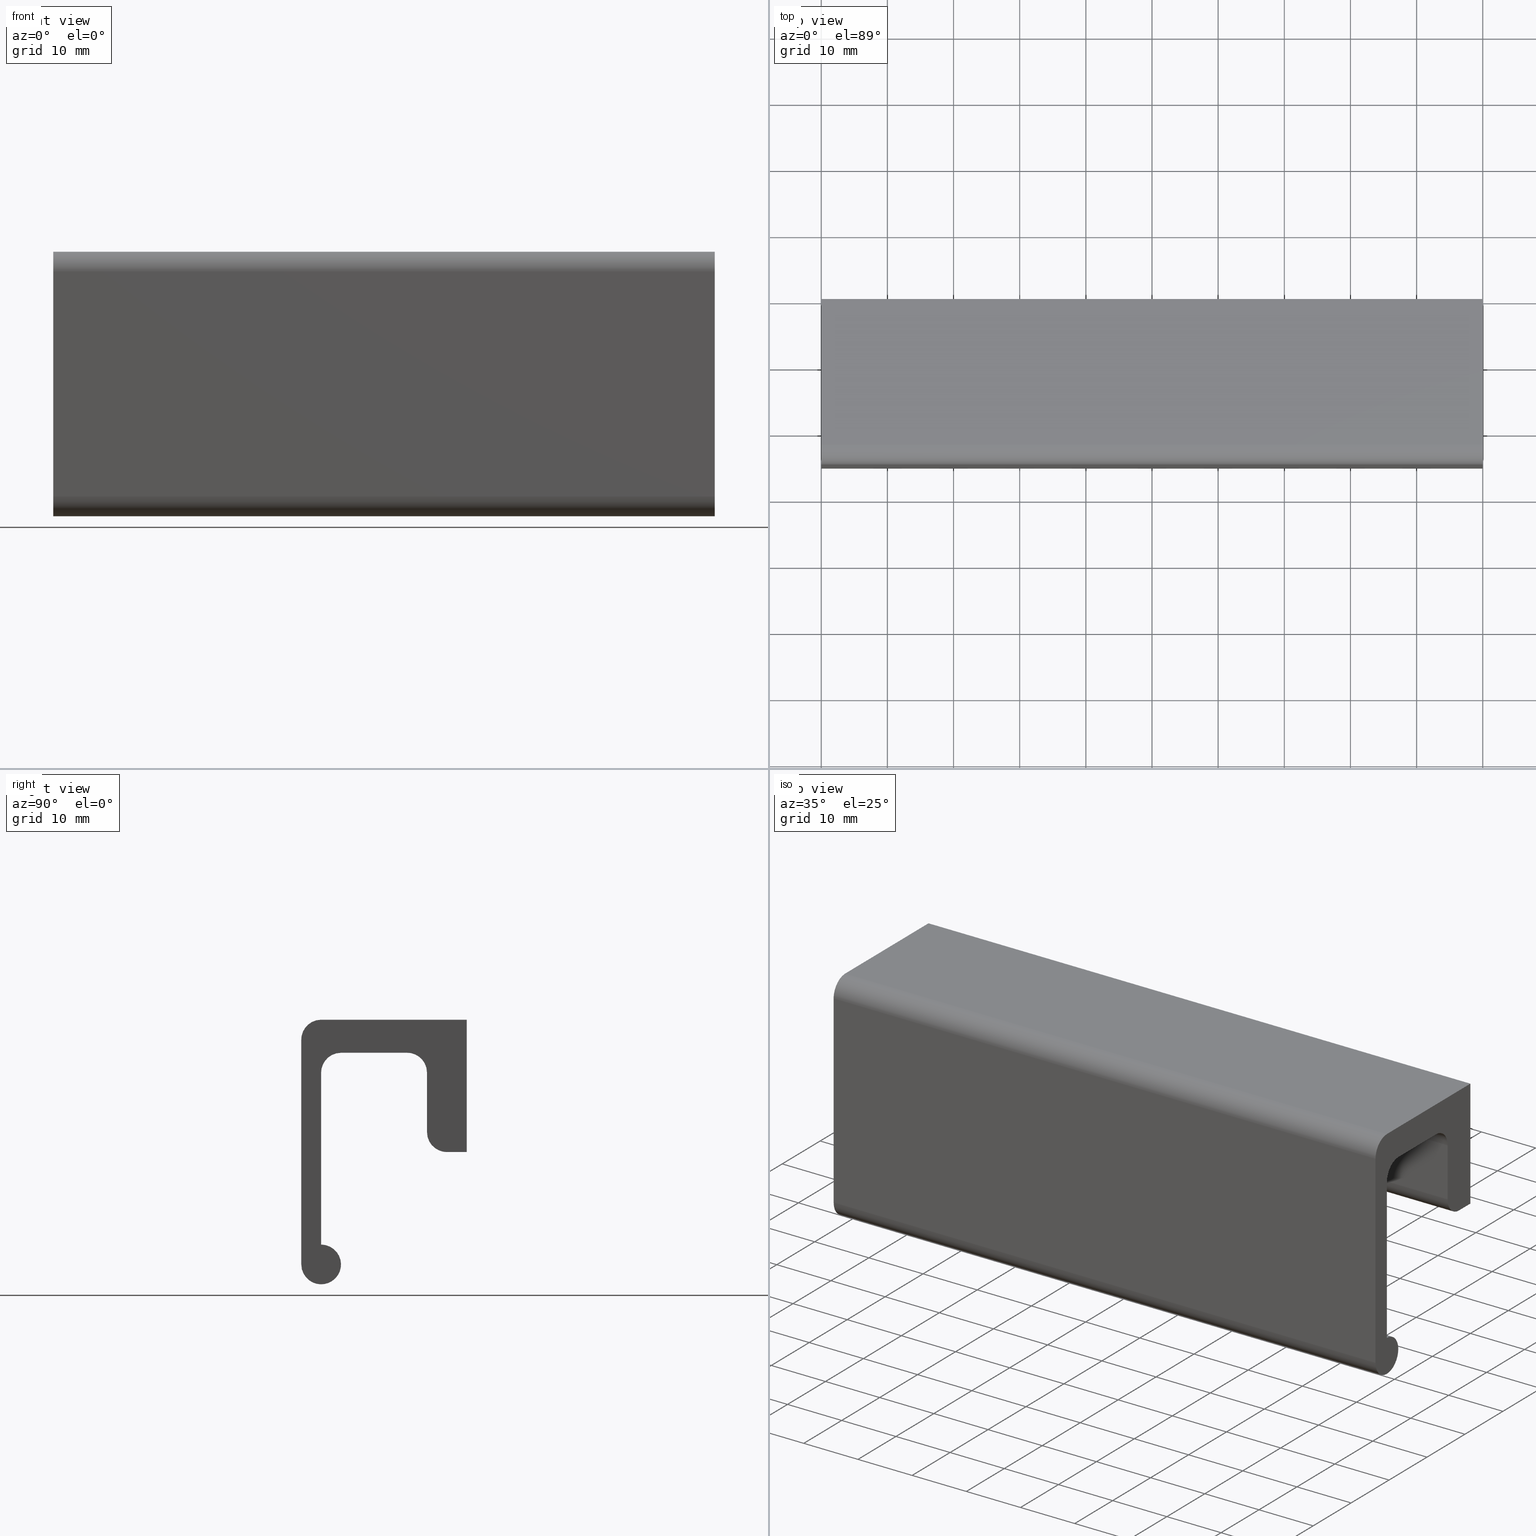
[diagram: canonical four-view strip — front | top / right | iso, engineering-drawing reading convention]
A machine part, canonical four-view strip (front | top / right | iso — engineering-drawing reading convention). The complete STEP part file that produces these views, byte-faithful:
ISO-10303-21;
HEADER;
/****************************************************************
 * Generated by software with PDE/Lib inside                    *
 * PDElib Version 4.4.1-0003, patched  Thursday August 19 11:58 *
 * International Technegroup Inc. (www.iti-oh.com)              *
 ****************************************************************/
FILE_DESCRIPTION((''),'2;1');
FILE_NAME('','2005-10-12T14:13:18',(''),(''),'','CADfix','');
FILE_SCHEMA(('AUTOMOTIVE_DESIGN'));
ENDSEC;
DATA;
#5=APPLICATION_CONTEXT('automotive design');
#6=APPLICATION_PROTOCOL_DEFINITION('Draft International Standard','automotive_design',1998,#5);
#7=PRODUCT_CONTEXT('None',#5,'mechanical');
#8=PRODUCT('pull','','None',(#7));
#9=PRODUCT_RELATED_PRODUCT_CATEGORY('part','description',(#8));
#10=PRODUCT_DEFINITION_FORMATION('None','None',#8);
#11=PRODUCT_DEFINITION_CONTEXT('part definition',#5,'design');
#12=PRODUCT_DEFINITION('None','None',#10,#11);
#18=(NAMED_UNIT(*)PLANE_ANGLE_UNIT()SI_UNIT($,.RADIAN.));
#19=DIMENSIONAL_EXPONENTS(0.0,0.0,0.0,0.0,0.0,0.0,0.0);
#20=PLANE_ANGLE_MEASURE_WITH_UNIT(PLANE_ANGLE_MEASURE(0.017453292500000),#18);
#24=(CONVERSION_BASED_UNIT('DEGREE',#20)NAMED_UNIT(#19)PLANE_ANGLE_UNIT());
#28=(NAMED_UNIT(*)SI_UNIT($,.STERADIAN.)SOLID_ANGLE_UNIT());
#32=(LENGTH_UNIT()NAMED_UNIT(*)SI_UNIT(.MILLI.,.METRE.));
#34=UNCERTAINTY_MEASURE_WITH_UNIT(LENGTH_MEASURE(0.001000000000000),#32,'DISTANCE_ACCURACY_VALUE','');
#36=(GEOMETRIC_REPRESENTATION_CONTEXT(3)GLOBAL_UNCERTAINTY_ASSIGNED_CONTEXT((#34))GLOBAL_UNIT_ASSIGNED_CONTEXT((#24,#28,#32))REPRESENTATION_CONTEXT('None','None'));
#37=AXIS2_PLACEMENT_3D('',#38,#39,#40);
#38=CARTESIAN_POINT('',(0.0,0.0,0.0));
#39=DIRECTION('',(0.0,0.0,1.0));
#40=DIRECTION('',(1.0,0.0,0.0));
#41=ADVANCED_BREP_SHAPE_REPRESENTATION('',(#37,#950),#36);
#42=PRODUCT_DEFINITION_SHAPE('','',#12);
#43=SHAPE_DEFINITION_REPRESENTATION(#42,#41);
#44=CARTESIAN_POINT('',(77.009247998800618,-6.150000000000001,-11.764622712816459));
#45=CARTESIAN_POINT('',(77.244625285984156,-6.150000000000002,-8.773870711617080));
#46=CARTESIAN_POINT('',(80.235377287183539,-6.150000000000001,-9.009247998800618));
#47=CARTESIAN_POINT('',(83.226129288382921,-6.150000000000002,-9.244625285984155));
#48=CARTESIAN_POINT('',(82.990752001199382,-6.150000000000001,-12.235377287183541));
#49=CARTESIAN_POINT('',(77.009247998800618,0.153750000000001,-11.764622712816459));
#50=CARTESIAN_POINT('',(77.244625285984156,0.153750000000000,-8.773870711617080));
#51=CARTESIAN_POINT('',(80.235377287183539,0.153750000000001,-9.009247998800618));
#52=CARTESIAN_POINT('',(83.226129288382921,0.153750000000000,-9.244625285984155));
#53=CARTESIAN_POINT('',(82.990752001199382,0.153750000000001,-12.235377287183541));
#61=(BOUNDED_SURFACE()B_SPLINE_SURFACE(2,1,((#44,#49),(#45,#50),(#46,#51),(#47,#52),(#48,#53)),.UNSPECIFIED.,.F.,.F.,.U.)B_SPLINE_SURFACE_WITH_KNOTS((3,2,3),(2,2),(0.0,4.970562748477129,9.941125496954259),(0.0,6.303750000000003),.UNSPECIFIED.)GEOMETRIC_REPRESENTATION_ITEM()RATIONAL_B_SPLINE_SURFACE(((1.0,1.0),(0.707106781186548,0.707106781186548),(1.0,1.0),(0.707106781186548,0.707106781186548),(1.0,1.0)))REPRESENTATION_ITEM('')SURFACE());
#62=CARTESIAN_POINT('',(80.0,-6.0,-9.000000000000002));
#63=VERTEX_POINT('',#62);
#64=CARTESIAN_POINT('',(77.009247998837708,-6.0,-11.764622712345099));
#65=VERTEX_POINT('',#64);
#66=CARTESIAN_POINT('',(80.0,-6.0,-9.000000000000002));
#67=CARTESIAN_POINT('',(77.226828525902263,-6.000000000000001,-9.000000000000004));
#68=CARTESIAN_POINT('',(77.009247998837708,-6.000000000000001,-11.764622712345096));
#76=(BOUNDED_CURVE()B_SPLINE_CURVE(2,(#66,#67,#68),.UNSPECIFIED.,.F.,.U.)B_SPLINE_CURVE_WITH_KNOTS((3,3),(0.0,0.236331300578731),.UNSPECIFIED.)CURVE()GEOMETRIC_REPRESENTATION_ITEM()RATIONAL_B_SPLINE_CURVE((1.0,0.723120658668504,0.969723356059047))REPRESENTATION_ITEM(''));
#77=EDGE_CURVE('',#63,#65,#76,.T.);
#78=ORIENTED_EDGE('',*,*,#77,.T.);
#79=CARTESIAN_POINT('',(77.009247998837708,1.665335E-016,-11.764622712345099));
#80=VERTEX_POINT('',#79);
#81=CARTESIAN_POINT('',(77.009247998837708,-6.0,-11.764622712345099));
#82=CARTESIAN_POINT('',(77.009247998837708,1.665335E-016,-11.764622712345099));
#83=QUASI_UNIFORM_CURVE('',1,(#81,#82),.UNSPECIFIED.,.F.,.U.);
#84=EDGE_CURVE('',#65,#80,#83,.T.);
#85=ORIENTED_EDGE('',*,*,#84,.T.);
#86=CARTESIAN_POINT('',(80.0,0.0,-9.000000000000002));
#87=VERTEX_POINT('',#86);
#88=CARTESIAN_POINT('',(80.0,0.0,-9.000000000000002));
#89=CARTESIAN_POINT('',(77.226828525902263,0.0,-9.000000000000004));
#90=CARTESIAN_POINT('',(77.009247998837708,1.665335E-016,-11.764622712345096));
#98=(BOUNDED_CURVE()B_SPLINE_CURVE(2,(#88,#89,#90),.UNSPECIFIED.,.F.,.U.)B_SPLINE_CURVE_WITH_KNOTS((3,3),(0.0,0.236331300578731),.UNSPECIFIED.)CURVE()GEOMETRIC_REPRESENTATION_ITEM()RATIONAL_B_SPLINE_CURVE((1.0,0.723120658668504,0.969723356059047))REPRESENTATION_ITEM(''));
#99=EDGE_CURVE('',#87,#80,#98,.T.);
#100=ORIENTED_EDGE('',*,*,#99,.F.);
#101=CARTESIAN_POINT('',(82.990752001162292,1.665335E-016,-12.235377287654901));
#102=VERTEX_POINT('',#101);
#103=CARTESIAN_POINT('',(82.990752001162292,1.665335E-016,-12.235377287654906));
#104=CARTESIAN_POINT('',(83.0,0.0,-12.117870321496570));
#105=CARTESIAN_POINT('',(83.0,0.0,-12.0));
#106=CARTESIAN_POINT('',(83.0,0.0,-9.000000000000002));
#107=CARTESIAN_POINT('',(80.0,0.0,-9.000000000000002));
#115=(BOUNDED_CURVE()B_SPLINE_CURVE(2,(#103,#104,#105,#106,#107),.UNSPECIFIED.,.F.,.U.)B_SPLINE_CURVE_WITH_KNOTS((3,2,3),(0.736331300578731,0.750000000000000,1.0),.UNSPECIFIED.)CURVE()GEOMETRIC_REPRESENTATION_ITEM()RATIONAL_B_SPLINE_CURVE((0.969723356059047,0.983986122518044,1.0,0.707106781186548,1.0))REPRESENTATION_ITEM(''));
#116=EDGE_CURVE('',#102,#87,#115,.T.);
#117=ORIENTED_EDGE('',*,*,#116,.F.);
#118=CARTESIAN_POINT('',(82.990752001162292,-6.0,-12.235377287654901));
#119=VERTEX_POINT('',#118);
#120=CARTESIAN_POINT('',(82.990752001162292,-6.0,-12.235377287654901));
#121=CARTESIAN_POINT('',(82.990752001162292,1.665335E-016,-12.235377287654901));
#122=QUASI_UNIFORM_CURVE('',1,(#120,#121),.UNSPECIFIED.,.F.,.U.);
#123=EDGE_CURVE('',#119,#102,#122,.T.);
#124=ORIENTED_EDGE('',*,*,#123,.F.);
#125=CARTESIAN_POINT('',(82.990752001162292,-6.0,-12.235377287654902));
#126=CARTESIAN_POINT('',(83.0,-6.000000000000001,-12.117870321496570));
#127=CARTESIAN_POINT('',(83.0,-6.0,-12.0));
#128=CARTESIAN_POINT('',(83.0,-6.0,-9.000000000000002));
#129=CARTESIAN_POINT('',(80.0,-6.0,-9.000000000000002));
#137=(BOUNDED_CURVE()B_SPLINE_CURVE(2,(#125,#126,#127,#128,#129),.UNSPECIFIED.,.F.,.U.)B_SPLINE_CURVE_WITH_KNOTS((3,2,3),(0.736331300578731,0.750000000000000,1.0),.UNSPECIFIED.)CURVE()GEOMETRIC_REPRESENTATION_ITEM()RATIONAL_B_SPLINE_CURVE((0.969723356059047,0.983986122518044,1.0,0.707106781186548,1.0))REPRESENTATION_ITEM(''));
#138=EDGE_CURVE('',#119,#63,#137,.T.);
#139=ORIENTED_EDGE('',*,*,#138,.T.);
#140=EDGE_LOOP('',(#78,#85,#100,#117,#124,#139));
#141=FACE_OUTER_BOUND('',#140,.T.);
#142=ADVANCED_FACE('',(#141),#61,.F.);
#143=CARTESIAN_POINT('',(82.990752001199382,-6.150000000000001,-12.235377287183541));
#144=CARTESIAN_POINT('',(82.755374714015829,-6.150000000000002,-15.226129288382928));
#145=CARTESIAN_POINT('',(79.764622712816461,-6.150000000000001,-14.990752001199381));
#146=CARTESIAN_POINT('',(76.773870711617079,-6.150000000000002,-14.755374714015845));
#147=CARTESIAN_POINT('',(77.009247998800618,-6.150000000000001,-11.764622712816459));
#148=CARTESIAN_POINT('',(82.990752001199382,0.153750000000001,-12.235377287183541));
#149=CARTESIAN_POINT('',(82.755374714015829,0.153750000000000,-15.226129288382928));
#150=CARTESIAN_POINT('',(79.764622712816461,0.153750000000001,-14.990752001199381));
#151=CARTESIAN_POINT('',(76.773870711617079,0.153750000000000,-14.755374714015845));
#152=CARTESIAN_POINT('',(77.009247998800618,0.153750000000001,-11.764622712816459));
#160=(BOUNDED_SURFACE()B_SPLINE_SURFACE(2,1,((#143,#148),(#144,#149),(#145,#150),(#146,#151),(#147,#152)),.UNSPECIFIED.,.F.,.F.,.U.)B_SPLINE_SURFACE_WITH_KNOTS((3,2,3),(2,2),(0.0,4.970562748477154,9.941125496954308),(0.0,6.303750000000003),.UNSPECIFIED.)GEOMETRIC_REPRESENTATION_ITEM()RATIONAL_B_SPLINE_SURFACE(((1.0,1.0),(0.707106781186548,0.707106781186548),(1.0,1.0),(0.707106781186548,0.707106781186548),(1.0,1.0)))REPRESENTATION_ITEM('')SURFACE());
#161=CARTESIAN_POINT('',(80.0,-6.0,-15.0));
#162=VERTEX_POINT('',#161);
#163=CARTESIAN_POINT('',(77.009247998837708,-6.000000000000001,-11.764622712345096));
#164=CARTESIAN_POINT('',(77.0,-6.000000000000001,-11.882129678503441));
#165=CARTESIAN_POINT('',(77.0,-6.0,-12.0));
#166=CARTESIAN_POINT('',(77.000000000000014,-6.0,-14.999999999999995));
#167=CARTESIAN_POINT('',(80.0,-6.0,-15.0));
#175=(BOUNDED_CURVE()B_SPLINE_CURVE(2,(#163,#164,#165,#166,#167),.UNSPECIFIED.,.F.,.U.)B_SPLINE_CURVE_WITH_KNOTS((3,2,3),(0.236331300578731,0.250000000000000,0.500000000000000),.UNSPECIFIED.)CURVE()GEOMETRIC_REPRESENTATION_ITEM()RATIONAL_B_SPLINE_CURVE((0.969723356059047,0.983986122518044,1.0,0.707106781186548,1.0))REPRESENTATION_ITEM(''));
#176=EDGE_CURVE('',#65,#162,#175,.T.);
#177=ORIENTED_EDGE('',*,*,#176,.T.);
#178=CARTESIAN_POINT('',(80.0,-6.0,-15.0));
#179=CARTESIAN_POINT('',(82.773171474097779,-6.0,-15.000000000000004));
#180=CARTESIAN_POINT('',(82.990752001162292,-6.0,-12.235377287654902));
#188=(BOUNDED_CURVE()B_SPLINE_CURVE(2,(#178,#179,#180),.UNSPECIFIED.,.F.,.U.)B_SPLINE_CURVE_WITH_KNOTS((3,3),(0.500000000000000,0.736331300578732),.UNSPECIFIED.)CURVE()GEOMETRIC_REPRESENTATION_ITEM()RATIONAL_B_SPLINE_CURVE((1.0,0.723120658668503,0.969723356059048))REPRESENTATION_ITEM(''));
#189=EDGE_CURVE('',#162,#119,#188,.T.);
#190=ORIENTED_EDGE('',*,*,#189,.T.);
#191=ORIENTED_EDGE('',*,*,#123,.T.);
#192=CARTESIAN_POINT('',(80.0,0.0,-15.0));
#193=VERTEX_POINT('',#192);
#194=CARTESIAN_POINT('',(80.0,0.0,-15.0));
#195=CARTESIAN_POINT('',(82.773171474097779,0.0,-15.000000000000004));
#196=CARTESIAN_POINT('',(82.990752001162292,1.665335E-016,-12.235377287654902));
#204=(BOUNDED_CURVE()B_SPLINE_CURVE(2,(#194,#195,#196),.UNSPECIFIED.,.F.,.U.)B_SPLINE_CURVE_WITH_KNOTS((3,3),(0.500000000000000,0.736331300578732),.UNSPECIFIED.)CURVE()GEOMETRIC_REPRESENTATION_ITEM()RATIONAL_B_SPLINE_CURVE((1.0,0.723120658668503,0.969723356059048))REPRESENTATION_ITEM(''));
#205=EDGE_CURVE('',#193,#102,#204,.T.);
#206=ORIENTED_EDGE('',*,*,#205,.F.);
#207=CARTESIAN_POINT('',(77.009247998837708,1.665335E-016,-11.764622712345096));
#208=CARTESIAN_POINT('',(77.0,0.0,-11.882129678503441));
#209=CARTESIAN_POINT('',(77.0,0.0,-12.0));
#210=CARTESIAN_POINT('',(77.000000000000014,0.0,-14.999999999999995));
#211=CARTESIAN_POINT('',(80.0,0.0,-15.0));
#219=(BOUNDED_CURVE()B_SPLINE_CURVE(2,(#207,#208,#209,#210,#211),.UNSPECIFIED.,.F.,.U.)B_SPLINE_CURVE_WITH_KNOTS((3,2,3),(0.236331300578731,0.250000000000000,0.500000000000000),.UNSPECIFIED.)CURVE()GEOMETRIC_REPRESENTATION_ITEM()RATIONAL_B_SPLINE_CURVE((0.969723356059047,0.983986122518044,1.0,0.707106781186548,1.0))REPRESENTATION_ITEM(''));
#220=EDGE_CURVE('',#80,#193,#219,.T.);
#221=ORIENTED_EDGE('',*,*,#220,.F.);
#222=ORIENTED_EDGE('',*,*,#84,.F.);
#223=EDGE_LOOP('',(#177,#190,#191,#206,#221,#222));
#224=FACE_OUTER_BOUND('',#223,.T.);
#225=ADVANCED_FACE('',(#224),#160,.F.);
#226=CARTESIAN_POINT('',(17.009247998800621,-6.150000000000001,-11.764622712816459));
#227=CARTESIAN_POINT('',(17.244625285984149,-6.150000000000002,-8.773870711617080));
#228=CARTESIAN_POINT('',(20.235377287183539,-6.150000000000001,-9.009247998800618));
#229=CARTESIAN_POINT('',(23.226129288382928,-6.150000000000002,-9.244625285984155));
#230=CARTESIAN_POINT('',(22.990752001199379,-6.150000000000001,-12.235377287183541));
#231=CARTESIAN_POINT('',(17.009247998800621,0.153750000000001,-11.764622712816459));
#232=CARTESIAN_POINT('',(17.244625285984149,0.153750000000000,-8.773870711617080));
#233=CARTESIAN_POINT('',(20.235377287183539,0.153750000000001,-9.009247998800618));
#234=CARTESIAN_POINT('',(23.226129288382928,0.153750000000000,-9.244625285984155));
#235=CARTESIAN_POINT('',(22.990752001199379,0.153750000000001,-12.235377287183541));
#243=(BOUNDED_SURFACE()B_SPLINE_SURFACE(2,1,((#226,#231),(#227,#232),(#228,#233),(#229,#234),(#230,#235)),.UNSPECIFIED.,.F.,.F.,.U.)B_SPLINE_SURFACE_WITH_KNOTS((3,2,3),(2,2),(0.0,4.970562748477145,9.941125496954291),(0.0,6.303750000000003),.UNSPECIFIED.)GEOMETRIC_REPRESENTATION_ITEM()RATIONAL_B_SPLINE_SURFACE(((1.0,1.0),(0.707106781186548,0.707106781186548),(1.0,1.0),(0.707106781186548,0.707106781186548),(1.0,1.0)))REPRESENTATION_ITEM('')SURFACE());
#244=CARTESIAN_POINT('',(20.0,-6.0,-9.000000000000002));
#245=VERTEX_POINT('',#244);
#246=CARTESIAN_POINT('',(17.009247998837719,-6.000000000000001,-11.764622712345091));
#247=VERTEX_POINT('',#246);
#248=CARTESIAN_POINT('',(20.0,-6.0,-9.000000000000002));
#249=CARTESIAN_POINT('',(17.226828525902242,-6.000000000000001,-9.000000000000002));
#250=CARTESIAN_POINT('',(17.009247998837715,-6.000000000000001,-11.764622712345096));
#258=(BOUNDED_CURVE()B_SPLINE_CURVE(2,(#248,#249,#250),.UNSPECIFIED.,.F.,.U.)B_SPLINE_CURVE_WITH_KNOTS((3,3),(0.0,0.236331300578731),.UNSPECIFIED.)CURVE()GEOMETRIC_REPRESENTATION_ITEM()RATIONAL_B_SPLINE_CURVE((1.0,0.723120658668504,0.969723356059047))REPRESENTATION_ITEM(''));
#259=EDGE_CURVE('',#245,#247,#258,.T.);
#260=ORIENTED_EDGE('',*,*,#259,.T.);
#261=CARTESIAN_POINT('',(17.009247998837719,1.665335E-016,-11.764622712345099));
#262=VERTEX_POINT('',#261);
#263=CARTESIAN_POINT('',(17.009247998837719,-6.000000000000001,-11.764622712345091));
#264=CARTESIAN_POINT('',(17.009247998837719,1.665335E-016,-11.764622712345099));
#265=QUASI_UNIFORM_CURVE('',1,(#263,#264),.UNSPECIFIED.,.F.,.U.);
#266=EDGE_CURVE('',#247,#262,#265,.T.);
#267=ORIENTED_EDGE('',*,*,#266,.T.);
#268=CARTESIAN_POINT('',(20.0,0.0,-9.000000000000002));
#269=VERTEX_POINT('',#268);
#270=CARTESIAN_POINT('',(20.0,0.0,-9.000000000000002));
#271=CARTESIAN_POINT('',(17.226828525902228,0.0,-9.000000000000002));
#272=CARTESIAN_POINT('',(17.009247998837715,1.665335E-016,-11.764622712345096));
#280=(BOUNDED_CURVE()B_SPLINE_CURVE(2,(#270,#271,#272),.UNSPECIFIED.,.F.,.U.)B_SPLINE_CURVE_WITH_KNOTS((3,3),(0.0,0.236331300578731),.UNSPECIFIED.)CURVE()GEOMETRIC_REPRESENTATION_ITEM()RATIONAL_B_SPLINE_CURVE((1.0,0.723120658668504,0.969723356059047))REPRESENTATION_ITEM(''));
#281=EDGE_CURVE('',#269,#262,#280,.T.);
#282=ORIENTED_EDGE('',*,*,#281,.F.);
#283=CARTESIAN_POINT('',(22.990752001162289,1.665335E-016,-12.235377287654901));
#284=VERTEX_POINT('',#283);
#285=CARTESIAN_POINT('',(22.990752001162285,1.665335E-016,-12.235377287654906));
#286=CARTESIAN_POINT('',(23.000000000000007,0.0,-12.117870321496570));
#287=CARTESIAN_POINT('',(23.0,0.0,-12.0));
#288=CARTESIAN_POINT('',(22.999999999999993,0.0,-9.000000000000002));
#289=CARTESIAN_POINT('',(20.0,0.0,-9.000000000000002));
#297=(BOUNDED_CURVE()B_SPLINE_CURVE(2,(#285,#286,#287,#288,#289),.UNSPECIFIED.,.F.,.U.)B_SPLINE_CURVE_WITH_KNOTS((3,2,3),(0.736331300578731,0.750000000000000,1.0),.UNSPECIFIED.)CURVE()GEOMETRIC_REPRESENTATION_ITEM()RATIONAL_B_SPLINE_CURVE((0.969723356059047,0.983986122518044,1.0,0.707106781186548,1.0))REPRESENTATION_ITEM(''));
#298=EDGE_CURVE('',#284,#269,#297,.T.);
#299=ORIENTED_EDGE('',*,*,#298,.F.);
#300=CARTESIAN_POINT('',(22.990752001162289,-6.0,-12.235377287654901));
#301=VERTEX_POINT('',#300);
#302=CARTESIAN_POINT('',(22.990752001162289,-6.0,-12.235377287654901));
#303=CARTESIAN_POINT('',(22.990752001162289,1.665335E-016,-12.235377287654901));
#304=QUASI_UNIFORM_CURVE('',1,(#302,#303),.UNSPECIFIED.,.F.,.U.);
#305=EDGE_CURVE('',#301,#284,#304,.T.);
#306=ORIENTED_EDGE('',*,*,#305,.F.);
#307=CARTESIAN_POINT('',(22.990752001162285,-6.0,-12.235377287654902));
#308=CARTESIAN_POINT('',(23.000000000000004,-6.000000000000001,-12.117870321496570));
#309=CARTESIAN_POINT('',(23.0,-6.0,-12.0));
#310=CARTESIAN_POINT('',(22.999999999999993,-6.0,-9.000000000000002));
#311=CARTESIAN_POINT('',(20.0,-6.0,-9.000000000000002));
#319=(BOUNDED_CURVE()B_SPLINE_CURVE(2,(#307,#308,#309,#310,#311),.UNSPECIFIED.,.F.,.U.)B_SPLINE_CURVE_WITH_KNOTS((3,2,3),(0.736331300578731,0.750000000000000,1.0),.UNSPECIFIED.)CURVE()GEOMETRIC_REPRESENTATION_ITEM()RATIONAL_B_SPLINE_CURVE((0.969723356059047,0.983986122518044,1.0,0.707106781186548,1.0))REPRESENTATION_ITEM(''));
#320=EDGE_CURVE('',#301,#245,#319,.T.);
#321=ORIENTED_EDGE('',*,*,#320,.T.);
#322=EDGE_LOOP('',(#260,#267,#282,#299,#306,#321));
#323=FACE_OUTER_BOUND('',#322,.T.);
#324=ADVANCED_FACE('',(#323),#243,.F.);
#325=CARTESIAN_POINT('',(22.990752001199379,-6.150000000000001,-12.235377287183541));
#326=CARTESIAN_POINT('',(22.755374714015847,-6.150000000000002,-15.226129288382928));
#327=CARTESIAN_POINT('',(19.764622712816472,-6.150000000000001,-14.990752001199381));
#328=CARTESIAN_POINT('',(16.773870711617082,-6.150000000000002,-14.755374714015845));
#329=CARTESIAN_POINT('',(17.009247998800621,-6.150000000000001,-11.764622712816459));
#330=CARTESIAN_POINT('',(22.990752001199379,0.153750000000001,-12.235377287183541));
#331=CARTESIAN_POINT('',(22.755374714015847,0.153750000000000,-15.226129288382928));
#332=CARTESIAN_POINT('',(19.764622712816472,0.153750000000001,-14.990752001199381));
#333=CARTESIAN_POINT('',(16.773870711617082,0.153750000000000,-14.755374714015845));
#334=CARTESIAN_POINT('',(17.009247998800621,0.153750000000001,-11.764622712816459));
#342=(BOUNDED_SURFACE()B_SPLINE_SURFACE(2,1,((#325,#330),(#326,#331),(#327,#332),(#328,#333),(#329,#334)),.UNSPECIFIED.,.F.,.F.,.U.)B_SPLINE_SURFACE_WITH_KNOTS((3,2,3),(2,2),(0.0,4.970562748477141,9.941125496954282),(0.0,6.303750000000003),.UNSPECIFIED.)GEOMETRIC_REPRESENTATION_ITEM()RATIONAL_B_SPLINE_SURFACE(((1.0,1.0),(0.707106781186548,0.707106781186548),(1.0,1.0),(0.707106781186548,0.707106781186548),(1.0,1.0)))REPRESENTATION_ITEM('')SURFACE());
#343=CARTESIAN_POINT('',(20.0,-6.0,-15.0));
#344=VERTEX_POINT('',#343);
#345=CARTESIAN_POINT('',(17.009247998837715,-6.000000000000001,-11.764622712345096));
#346=CARTESIAN_POINT('',(16.999999999999996,-5.999999999999999,-11.882129678503441));
#347=CARTESIAN_POINT('',(17.0,-6.0,-12.0));
#348=CARTESIAN_POINT('',(17.000000000000004,-6.0,-14.999999999999995));
#349=CARTESIAN_POINT('',(20.0,-6.0,-15.0));
#357=(BOUNDED_CURVE()B_SPLINE_CURVE(2,(#345,#346,#347,#348,#349),.UNSPECIFIED.,.F.,.U.)B_SPLINE_CURVE_WITH_KNOTS((3,2,3),(0.236331300578731,0.250000000000000,0.500000000000000),.UNSPECIFIED.)CURVE()GEOMETRIC_REPRESENTATION_ITEM()RATIONAL_B_SPLINE_CURVE((0.969723356059047,0.983986122518044,1.0,0.707106781186548,1.0))REPRESENTATION_ITEM(''));
#358=EDGE_CURVE('',#247,#344,#357,.T.);
#359=ORIENTED_EDGE('',*,*,#358,.T.);
#360=CARTESIAN_POINT('',(20.0,-6.0,-15.0));
#361=CARTESIAN_POINT('',(22.773171474097772,-6.0,-15.000000000000004));
#362=CARTESIAN_POINT('',(22.990752001162289,-6.0,-12.235377287654902));
#370=(BOUNDED_CURVE()B_SPLINE_CURVE(2,(#360,#361,#362),.UNSPECIFIED.,.F.,.U.)B_SPLINE_CURVE_WITH_KNOTS((3,3),(0.500000000000000,0.736331300578732),.UNSPECIFIED.)CURVE()GEOMETRIC_REPRESENTATION_ITEM()RATIONAL_B_SPLINE_CURVE((1.0,0.723120658668503,0.969723356059048))REPRESENTATION_ITEM(''));
#371=EDGE_CURVE('',#344,#301,#370,.T.);
#372=ORIENTED_EDGE('',*,*,#371,.T.);
#373=ORIENTED_EDGE('',*,*,#305,.T.);
#374=CARTESIAN_POINT('',(20.0,0.0,-15.0));
#375=VERTEX_POINT('',#374);
#376=CARTESIAN_POINT('',(20.0,0.0,-15.0));
#377=CARTESIAN_POINT('',(22.773171474097772,0.0,-15.000000000000004));
#378=CARTESIAN_POINT('',(22.990752001162289,1.665335E-016,-12.235377287654902));
#386=(BOUNDED_CURVE()B_SPLINE_CURVE(2,(#376,#377,#378),.UNSPECIFIED.,.F.,.U.)B_SPLINE_CURVE_WITH_KNOTS((3,3),(0.500000000000000,0.736331300578732),.UNSPECIFIED.)CURVE()GEOMETRIC_REPRESENTATION_ITEM()RATIONAL_B_SPLINE_CURVE((1.0,0.723120658668503,0.969723356059048))REPRESENTATION_ITEM(''));
#387=EDGE_CURVE('',#375,#284,#386,.T.);
#388=ORIENTED_EDGE('',*,*,#387,.F.);
#389=CARTESIAN_POINT('',(17.009247998837715,1.665335E-016,-11.764622712345096));
#390=CARTESIAN_POINT('',(16.999999999999996,0.0,-11.882129678503441));
#391=CARTESIAN_POINT('',(17.0,0.0,-12.0));
#392=CARTESIAN_POINT('',(17.000000000000004,0.0,-14.999999999999995));
#393=CARTESIAN_POINT('',(20.0,0.0,-15.0));
#401=(BOUNDED_CURVE()B_SPLINE_CURVE(2,(#389,#390,#391,#392,#393),.UNSPECIFIED.,.F.,.U.)B_SPLINE_CURVE_WITH_KNOTS((3,2,3),(0.236331300578731,0.250000000000000,0.500000000000000),.UNSPECIFIED.)CURVE()GEOMETRIC_REPRESENTATION_ITEM()RATIONAL_B_SPLINE_CURVE((0.969723356059047,0.983986122518044,1.0,0.707106781186548,1.0))REPRESENTATION_ITEM(''));
#402=EDGE_CURVE('',#262,#375,#401,.T.);
#403=ORIENTED_EDGE('',*,*,#402,.F.);
#404=ORIENTED_EDGE('',*,*,#266,.F.);
#405=EDGE_LOOP('',(#359,#372,#373,#388,#403,#404));
#406=FACE_OUTER_BOUND('',#405,.T.);
#407=ADVANCED_FACE('',(#406),#342,.F.);
#408=CARTESIAN_POINT('',(0.0,-26.248749951545150,1.997999890100308));
#409=CARTESIAN_POINT('',(0.0,1.248750622097401,1.997999890100308));
#410=CARTESIAN_POINT('',(0.0,-26.248749951545150,-41.998000314290628));
#411=CARTESIAN_POINT('',(0.0,1.248750622097401,-41.998000314290628));
#412=B_SPLINE_SURFACE_WITH_KNOTS('',1,1,((#408,#410),(#409,#411)),.UNSPECIFIED.,.F.,.F.,.U.,(2,2),(2,2),(0.0,27.497500573642551),(0.0,43.996000204390938),.UNSPECIFIED.);
#413=CARTESIAN_POINT('',(0.0,0.0,0.0));
#414=VERTEX_POINT('',#413);
#415=CARTESIAN_POINT('',(0.0,0.0,-20.0));
#416=VERTEX_POINT('',#415);
#417=CARTESIAN_POINT('',(0.0,0.0,0.0));
#418=CARTESIAN_POINT('',(0.0,0.0,-20.0));
#419=QUASI_UNIFORM_CURVE('',1,(#417,#418),.UNSPECIFIED.,.F.,.U.);
#420=EDGE_CURVE('',#414,#416,#419,.T.);
#421=ORIENTED_EDGE('',*,*,#420,.T.);
#422=CARTESIAN_POINT('',(0.0,-3.0,-20.0));
#423=VERTEX_POINT('',#422);
#424=CARTESIAN_POINT('',(0.0,0.0,-20.0));
#425=CARTESIAN_POINT('',(0.0,-3.0,-20.0));
#426=QUASI_UNIFORM_CURVE('',1,(#424,#425),.UNSPECIFIED.,.F.,.U.);
#427=EDGE_CURVE('',#416,#423,#426,.T.);
#428=ORIENTED_EDGE('',*,*,#427,.T.);
#429=CARTESIAN_POINT('',(0.0,-6.0,-17.0));
#430=VERTEX_POINT('',#429);
#431=CARTESIAN_POINT('',(0.0,-6.0,-17.0));
#432=CARTESIAN_POINT('',(0.0,-6.0,-19.999999999999996));
#433=CARTESIAN_POINT('',(0.0,-3.0,-20.0));
#441=(BOUNDED_CURVE()B_SPLINE_CURVE(2,(#431,#432,#433),.UNSPECIFIED.,.F.,.U.)CURVE()GEOMETRIC_REPRESENTATION_ITEM()QUASI_UNIFORM_CURVE()RATIONAL_B_SPLINE_CURVE((1.0,0.707106781186548,1.0))REPRESENTATION_ITEM(''));
#442=EDGE_CURVE('',#430,#423,#441,.T.);
#443=ORIENTED_EDGE('',*,*,#442,.F.);
#444=CARTESIAN_POINT('',(0.0,-6.0,-8.0));
#445=VERTEX_POINT('',#444);
#446=CARTESIAN_POINT('',(0.0,-6.0,-17.0));
#447=CARTESIAN_POINT('',(0.0,-6.0,-8.0));
#448=QUASI_UNIFORM_CURVE('',1,(#446,#447),.UNSPECIFIED.,.F.,.U.);
#449=EDGE_CURVE('',#430,#445,#448,.T.);
#450=ORIENTED_EDGE('',*,*,#449,.T.);
#451=CARTESIAN_POINT('',(0.0,-9.0,-5.0));
#452=VERTEX_POINT('',#451);
#453=CARTESIAN_POINT('',(0.0,-5.999999999999999,-8.0));
#454=CARTESIAN_POINT('',(0.0,-5.999999999999999,-5.000000000000001));
#455=CARTESIAN_POINT('',(0.0,-9.0,-5.0));
#463=(BOUNDED_CURVE()B_SPLINE_CURVE(2,(#453,#454,#455),.UNSPECIFIED.,.F.,.U.)CURVE()GEOMETRIC_REPRESENTATION_ITEM()QUASI_UNIFORM_CURVE()RATIONAL_B_SPLINE_CURVE((1.0,0.707106781186548,1.0))REPRESENTATION_ITEM(''));
#464=EDGE_CURVE('',#445,#452,#463,.T.);
#465=ORIENTED_EDGE('',*,*,#464,.T.);
#466=CARTESIAN_POINT('',(0.0,-19.0,-5.0));
#467=VERTEX_POINT('',#466);
#468=CARTESIAN_POINT('',(0.0,-9.0,-5.0));
#469=CARTESIAN_POINT('',(0.0,-19.0,-5.0));
#470=QUASI_UNIFORM_CURVE('',1,(#468,#469),.UNSPECIFIED.,.F.,.U.);
#471=EDGE_CURVE('',#452,#467,#470,.T.);
#472=ORIENTED_EDGE('',*,*,#471,.T.);
#473=CARTESIAN_POINT('',(0.0,-22.0,-8.0));
#474=VERTEX_POINT('',#473);
#475=CARTESIAN_POINT('',(0.0,-19.0,-5.0));
#476=CARTESIAN_POINT('',(0.0,-22.000000000000007,-5.000000000000001));
#477=CARTESIAN_POINT('',(0.0,-22.0,-8.0));
#485=(BOUNDED_CURVE()B_SPLINE_CURVE(2,(#475,#476,#477),.UNSPECIFIED.,.F.,.U.)CURVE()GEOMETRIC_REPRESENTATION_ITEM()QUASI_UNIFORM_CURVE()RATIONAL_B_SPLINE_CURVE((1.0,0.707106781186548,1.0))REPRESENTATION_ITEM(''));
#486=EDGE_CURVE('',#467,#474,#485,.T.);
#487=ORIENTED_EDGE('',*,*,#486,.T.);
#488=CARTESIAN_POINT('',(0.0,-22.0,-34.0));
#489=VERTEX_POINT('',#488);
#490=CARTESIAN_POINT('',(0.0,-22.0,-8.0));
#491=CARTESIAN_POINT('',(0.0,-22.0,-34.0));
#492=QUASI_UNIFORM_CURVE('',1,(#490,#491),.UNSPECIFIED.,.F.,.U.);
#493=EDGE_CURVE('',#474,#489,#492,.T.);
#494=ORIENTED_EDGE('',*,*,#493,.T.);
#495=CARTESIAN_POINT('',(0.0,-25.0,-37.0));
#496=VERTEX_POINT('',#495);
#497=CARTESIAN_POINT('',(0.0,-25.0,-37.0));
#498=CARTESIAN_POINT('',(0.0,-25.0,-39.999999999999993));
#499=CARTESIAN_POINT('',(0.0,-22.0,-40.0));
#500=CARTESIAN_POINT('',(0.0,-18.999999999999993,-39.999999999999993));
#501=CARTESIAN_POINT('',(0.0,-19.0,-37.0));
#502=CARTESIAN_POINT('',(0.0,-18.999999999999993,-33.999999999999993));
#503=CARTESIAN_POINT('',(0.0,-22.0,-33.999999999999993));
#511=(BOUNDED_CURVE()B_SPLINE_CURVE(2,(#497,#498,#499,#500,#501,#502,#503),.UNSPECIFIED.,.F.,.U.)B_SPLINE_CURVE_WITH_KNOTS((3,2,2,3),(0.0,0.333333333333333,0.666666666666667,1.0),.UNSPECIFIED.)CURVE()GEOMETRIC_REPRESENTATION_ITEM()RATIONAL_B_SPLINE_CURVE((1.0,0.707106781186548,1.0,0.707106781186548,1.0,0.707106781186548,1.0))REPRESENTATION_ITEM(''));
#512=EDGE_CURVE('',#496,#489,#511,.T.);
#513=ORIENTED_EDGE('',*,*,#512,.F.);
#514=CARTESIAN_POINT('',(0.0,-25.0,-3.0));
#515=VERTEX_POINT('',#514);
#516=CARTESIAN_POINT('',(0.0,-25.0,-37.0));
#517=CARTESIAN_POINT('',(0.0,-25.0,-3.0));
#518=QUASI_UNIFORM_CURVE('',1,(#516,#517),.UNSPECIFIED.,.F.,.U.);
#519=EDGE_CURVE('',#496,#515,#518,.T.);
#520=ORIENTED_EDGE('',*,*,#519,.T.);
#521=CARTESIAN_POINT('',(0.0,-22.0,0.0));
#522=VERTEX_POINT('',#521);
#523=CARTESIAN_POINT('',(0.0,-22.0,0.0));
#524=CARTESIAN_POINT('',(0.0,-25.0,0.0));
#525=CARTESIAN_POINT('',(0.0,-25.0,-3.0));
#533=(BOUNDED_CURVE()B_SPLINE_CURVE(2,(#523,#524,#525),.UNSPECIFIED.,.F.,.U.)CURVE()GEOMETRIC_REPRESENTATION_ITEM()QUASI_UNIFORM_CURVE()RATIONAL_B_SPLINE_CURVE((1.0,0.707106781186548,1.0))REPRESENTATION_ITEM(''));
#534=EDGE_CURVE('',#522,#515,#533,.T.);
#535=ORIENTED_EDGE('',*,*,#534,.F.);
#536=CARTESIAN_POINT('',(0.0,-22.0,0.0));
#537=CARTESIAN_POINT('',(0.0,0.0,0.0));
#538=QUASI_UNIFORM_CURVE('',1,(#536,#537),.UNSPECIFIED.,.F.,.U.);
#539=EDGE_CURVE('',#522,#414,#538,.T.);
#540=ORIENTED_EDGE('',*,*,#539,.T.);
#541=EDGE_LOOP('',(#421,#428,#443,#450,#465,#472,#487,#494,#513,#520,#535,#540));
#542=FACE_OUTER_BOUND('',#541,.T.);
#543=ADVANCED_FACE('',(#542),#412,.T.);
#544=CARTESIAN_POINT('',(100.0,-26.248749951545150,1.997999890100308));
#545=CARTESIAN_POINT('',(100.0,1.248750622097401,1.997999890100308));
#546=CARTESIAN_POINT('',(100.0,-26.248749951545150,-41.998000314290628));
#547=CARTESIAN_POINT('',(100.0,1.248750622097401,-41.998000314290628));
#548=B_SPLINE_SURFACE_WITH_KNOTS('',1,1,((#544,#546),(#545,#547)),.UNSPECIFIED.,.F.,.F.,.U.,(2,2),(2,2),(0.0,27.497500573642551),(0.0,43.996000204390938),.UNSPECIFIED.);
#549=CARTESIAN_POINT('',(100.0,0.0,0.0));
#550=VERTEX_POINT('',#549);
#551=CARTESIAN_POINT('',(100.0,0.0,-20.0));
#552=VERTEX_POINT('',#551);
#553=CARTESIAN_POINT('',(100.0,0.0,0.0));
#554=CARTESIAN_POINT('',(100.0,0.0,-20.0));
#555=QUASI_UNIFORM_CURVE('',1,(#553,#554),.UNSPECIFIED.,.F.,.U.);
#556=EDGE_CURVE('',#550,#552,#555,.T.);
#557=ORIENTED_EDGE('',*,*,#556,.F.);
#558=CARTESIAN_POINT('',(100.0,-22.0,0.0));
#559=VERTEX_POINT('',#558);
#560=CARTESIAN_POINT('',(100.0,-22.0,0.0));
#561=CARTESIAN_POINT('',(100.0,0.0,0.0));
#562=QUASI_UNIFORM_CURVE('',1,(#560,#561),.UNSPECIFIED.,.F.,.U.);
#563=EDGE_CURVE('',#559,#550,#562,.T.);
#564=ORIENTED_EDGE('',*,*,#563,.F.);
#565=CARTESIAN_POINT('',(100.0,-25.0,-3.0));
#566=VERTEX_POINT('',#565);
#567=CARTESIAN_POINT('',(100.0,-22.0,0.0));
#568=CARTESIAN_POINT('',(100.0,-25.0,0.0));
#569=CARTESIAN_POINT('',(100.0,-25.0,-3.0));
#577=(BOUNDED_CURVE()B_SPLINE_CURVE(2,(#567,#568,#569),.UNSPECIFIED.,.F.,.U.)CURVE()GEOMETRIC_REPRESENTATION_ITEM()QUASI_UNIFORM_CURVE()RATIONAL_B_SPLINE_CURVE((1.0,0.707106781186548,1.0))REPRESENTATION_ITEM(''));
#578=EDGE_CURVE('',#559,#566,#577,.T.);
#579=ORIENTED_EDGE('',*,*,#578,.T.);
#580=CARTESIAN_POINT('',(100.0,-25.0,-37.0));
#581=VERTEX_POINT('',#580);
#582=CARTESIAN_POINT('',(100.0,-25.0,-37.0));
#583=CARTESIAN_POINT('',(100.0,-25.0,-3.0));
#584=QUASI_UNIFORM_CURVE('',1,(#582,#583),.UNSPECIFIED.,.F.,.U.);
#585=EDGE_CURVE('',#581,#566,#584,.T.);
#586=ORIENTED_EDGE('',*,*,#585,.F.);
#587=CARTESIAN_POINT('',(100.0,-22.0,-34.0));
#588=VERTEX_POINT('',#587);
#589=CARTESIAN_POINT('',(100.0,-25.0,-37.0));
#590=CARTESIAN_POINT('',(100.0,-25.0,-39.999999999999993));
#591=CARTESIAN_POINT('',(100.0,-22.0,-40.0));
#592=CARTESIAN_POINT('',(100.0,-18.999999999999993,-39.999999999999993));
#593=CARTESIAN_POINT('',(100.0,-19.0,-37.0));
#594=CARTESIAN_POINT('',(100.0,-18.999999999999993,-33.999999999999993));
#595=CARTESIAN_POINT('',(100.0,-22.0,-33.999999999999993));
#603=(BOUNDED_CURVE()B_SPLINE_CURVE(2,(#589,#590,#591,#592,#593,#594,#595),.UNSPECIFIED.,.F.,.U.)B_SPLINE_CURVE_WITH_KNOTS((3,2,2,3),(0.0,0.333333333333333,0.666666666666667,1.0),.UNSPECIFIED.)CURVE()GEOMETRIC_REPRESENTATION_ITEM()RATIONAL_B_SPLINE_CURVE((1.0,0.707106781186548,1.0,0.707106781186548,1.0,0.707106781186548,1.0))REPRESENTATION_ITEM(''));
#604=EDGE_CURVE('',#581,#588,#603,.T.);
#605=ORIENTED_EDGE('',*,*,#604,.T.);
#606=CARTESIAN_POINT('',(100.0,-22.0,-8.0));
#607=VERTEX_POINT('',#606);
#608=CARTESIAN_POINT('',(100.0,-22.0,-8.0));
#609=CARTESIAN_POINT('',(100.0,-22.0,-34.0));
#610=QUASI_UNIFORM_CURVE('',1,(#608,#609),.UNSPECIFIED.,.F.,.U.);
#611=EDGE_CURVE('',#607,#588,#610,.T.);
#612=ORIENTED_EDGE('',*,*,#611,.F.);
#613=CARTESIAN_POINT('',(100.0,-19.0,-5.0));
#614=VERTEX_POINT('',#613);
#615=CARTESIAN_POINT('',(100.0,-19.0,-5.0));
#616=CARTESIAN_POINT('',(100.0,-22.000000000000007,-5.000000000000001));
#617=CARTESIAN_POINT('',(100.0,-22.0,-8.0));
#625=(BOUNDED_CURVE()B_SPLINE_CURVE(2,(#615,#616,#617),.UNSPECIFIED.,.F.,.U.)CURVE()GEOMETRIC_REPRESENTATION_ITEM()QUASI_UNIFORM_CURVE()RATIONAL_B_SPLINE_CURVE((1.0,0.707106781186548,1.0))REPRESENTATION_ITEM(''));
#626=EDGE_CURVE('',#614,#607,#625,.T.);
#627=ORIENTED_EDGE('',*,*,#626,.F.);
#628=CARTESIAN_POINT('',(100.0,-9.0,-5.0));
#629=VERTEX_POINT('',#628);
#630=CARTESIAN_POINT('',(100.0,-9.0,-5.0));
#631=CARTESIAN_POINT('',(100.0,-19.0,-5.0));
#632=QUASI_UNIFORM_CURVE('',1,(#630,#631),.UNSPECIFIED.,.F.,.U.);
#633=EDGE_CURVE('',#629,#614,#632,.T.);
#634=ORIENTED_EDGE('',*,*,#633,.F.);
#635=CARTESIAN_POINT('',(100.0,-6.0,-8.0));
#636=VERTEX_POINT('',#635);
#637=CARTESIAN_POINT('',(100.0,-5.999999999999999,-8.0));
#638=CARTESIAN_POINT('',(100.0,-5.999999999999999,-5.000000000000001));
#639=CARTESIAN_POINT('',(100.0,-9.0,-5.0));
#647=(BOUNDED_CURVE()B_SPLINE_CURVE(2,(#637,#638,#639),.UNSPECIFIED.,.F.,.U.)CURVE()GEOMETRIC_REPRESENTATION_ITEM()QUASI_UNIFORM_CURVE()RATIONAL_B_SPLINE_CURVE((1.0,0.707106781186548,1.0))REPRESENTATION_ITEM(''));
#648=EDGE_CURVE('',#636,#629,#647,.T.);
#649=ORIENTED_EDGE('',*,*,#648,.F.);
#650=CARTESIAN_POINT('',(100.0,-6.0,-17.0));
#651=VERTEX_POINT('',#650);
#652=CARTESIAN_POINT('',(100.0,-6.0,-17.0));
#653=CARTESIAN_POINT('',(100.0,-6.0,-8.0));
#654=QUASI_UNIFORM_CURVE('',1,(#652,#653),.UNSPECIFIED.,.F.,.U.);
#655=EDGE_CURVE('',#651,#636,#654,.T.);
#656=ORIENTED_EDGE('',*,*,#655,.F.);
#657=CARTESIAN_POINT('',(100.0,-3.0,-20.0));
#658=VERTEX_POINT('',#657);
#659=CARTESIAN_POINT('',(100.0,-6.0,-17.0));
#660=CARTESIAN_POINT('',(100.0,-6.0,-19.999999999999996));
#661=CARTESIAN_POINT('',(100.0,-3.0,-20.0));
#669=(BOUNDED_CURVE()B_SPLINE_CURVE(2,(#659,#660,#661),.UNSPECIFIED.,.F.,.U.)CURVE()GEOMETRIC_REPRESENTATION_ITEM()QUASI_UNIFORM_CURVE()RATIONAL_B_SPLINE_CURVE((1.0,0.707106781186548,1.0))REPRESENTATION_ITEM(''));
#670=EDGE_CURVE('',#651,#658,#669,.T.);
#671=ORIENTED_EDGE('',*,*,#670,.T.);
#672=CARTESIAN_POINT('',(100.0,0.0,-20.0));
#673=CARTESIAN_POINT('',(100.0,-3.0,-20.0));
#674=QUASI_UNIFORM_CURVE('',1,(#672,#673),.UNSPECIFIED.,.F.,.U.);
#675=EDGE_CURVE('',#552,#658,#674,.T.);
#676=ORIENTED_EDGE('',*,*,#675,.F.);
#677=EDGE_LOOP('',(#557,#564,#579,#586,#605,#612,#627,#634,#649,#656,#671,#676));
#678=FACE_OUTER_BOUND('',#677,.T.);
#679=ADVANCED_FACE('',(#678),#548,.F.);
#680=CARTESIAN_POINT('',(-4.994999806180597,-23.098899957359730,0.0));
#681=CARTESIAN_POINT('',(104.995002488389600,-23.098899957359730,0.0));
#682=CARTESIAN_POINT('',(-4.994999806180597,1.098900547445714,0.0));
#683=CARTESIAN_POINT('',(104.995002488389600,1.098900547445714,0.0));
#684=B_SPLINE_SURFACE_WITH_KNOTS('',1,1,((#680,#682),(#681,#683)),.UNSPECIFIED.,.F.,.F.,.U.,(2,2),(2,2),(0.0,109.990002294570200),(0.0,24.197800504805439),.UNSPECIFIED.);
#685=ORIENTED_EDGE('',*,*,#539,.F.);
#686=CARTESIAN_POINT('',(100.0,-22.0,0.0));
#687=CARTESIAN_POINT('',(0.0,-22.0,0.0));
#688=QUASI_UNIFORM_CURVE('',1,(#686,#687),.UNSPECIFIED.,.F.,.U.);
#689=EDGE_CURVE('',#559,#522,#688,.T.);
#690=ORIENTED_EDGE('',*,*,#689,.F.);
#691=ORIENTED_EDGE('',*,*,#563,.T.);
#692=CARTESIAN_POINT('',(100.0,0.0,0.0));
#693=CARTESIAN_POINT('',(0.0,0.0,0.0));
#694=QUASI_UNIFORM_CURVE('',1,(#692,#693),.UNSPECIFIED.,.F.,.U.);
#695=EDGE_CURVE('',#550,#414,#694,.T.);
#696=ORIENTED_EDGE('',*,*,#695,.T.);
#697=EDGE_LOOP('',(#685,#690,#691,#696));
#698=FACE_OUTER_BOUND('',#697,.T.);
#699=ADVANCED_FACE('',(#698),#684,.T.);
#700=CARTESIAN_POINT('',(102.500000000000000,-21.921469155076380,-0.001028025073329));
#701=CARTESIAN_POINT('',(-2.562500000000000,-21.921469155076380,-0.001028025073329));
#702=CARTESIAN_POINT('',(102.499999999999990,-25.224954401664167,0.085476780498783));
#703=CARTESIAN_POINT('',(-2.562500000000000,-25.224954401664167,0.085476780498783));
#704=CARTESIAN_POINT('',(102.500000000000040,-24.992573438142436,-3.210960226877957));
#705=CARTESIAN_POINT('',(-2.562500000000000,-24.992573438142436,-3.210960226877957));
#713=(BOUNDED_SURFACE()B_SPLINE_SURFACE(1,2,((#700,#702,#704),(#701,#703,#705)),.UNSPECIFIED.,.F.,.F.,.U.)B_SPLINE_SURFACE_WITH_KNOTS((2,2),(3,3),(0.0,105.062500000000000),(0.0,5.313427032265103),.UNSPECIFIED.)GEOMETRIC_REPRESENTATION_ITEM()RATIONAL_B_SPLINE_SURFACE(((1.0,0.670944223154768,0.996392648609106),(1.0,0.670944223154768,0.996392648609106)))REPRESENTATION_ITEM('')SURFACE());
#714=ORIENTED_EDGE('',*,*,#534,.T.);
#715=CARTESIAN_POINT('',(100.0,-25.0,-3.0));
#716=CARTESIAN_POINT('',(0.0,-25.0,-3.0));
#717=QUASI_UNIFORM_CURVE('',1,(#715,#716),.UNSPECIFIED.,.F.,.U.);
#718=EDGE_CURVE('',#566,#515,#717,.T.);
#719=ORIENTED_EDGE('',*,*,#718,.F.);
#720=ORIENTED_EDGE('',*,*,#578,.F.);
#721=ORIENTED_EDGE('',*,*,#689,.T.);
#722=EDGE_LOOP('',(#714,#719,#720,#721));
#723=FACE_OUTER_BOUND('',#722,.T.);
#724=ADVANCED_FACE('',(#723),#713,.T.);
#725=CARTESIAN_POINT('',(-4.994999806180597,-25.0,-1.301700065898595));
#726=CARTESIAN_POINT('',(-4.994999806180597,-25.0,-38.698300846052483));
#727=CARTESIAN_POINT('',(104.995002488389600,-25.0,-1.301700065898595));
#728=CARTESIAN_POINT('',(104.995002488389600,-25.0,-38.698300846052483));
#729=B_SPLINE_SURFACE_WITH_KNOTS('',1,1,((#725,#727),(#726,#728)),.UNSPECIFIED.,.F.,.F.,.U.,(2,2),(2,2),(0.0,37.396600780153882),(0.0,109.990002294570200),.UNSPECIFIED.);
#730=ORIENTED_EDGE('',*,*,#519,.F.);
#731=CARTESIAN_POINT('',(100.0,-25.0,-37.0));
#732=CARTESIAN_POINT('',(0.0,-25.0,-37.0));
#733=QUASI_UNIFORM_CURVE('',1,(#731,#732),.UNSPECIFIED.,.F.,.U.);
#734=EDGE_CURVE('',#581,#496,#733,.T.);
#735=ORIENTED_EDGE('',*,*,#734,.F.);
#736=ORIENTED_EDGE('',*,*,#585,.T.);
#737=ORIENTED_EDGE('',*,*,#718,.T.);
#738=EDGE_LOOP('',(#730,#735,#736,#737));
#739=FACE_OUTER_BOUND('',#738,.T.);
#740=ADVANCED_FACE('',(#739),#729,.T.);
#741=CARTESIAN_POINT('',(102.500000000000000,-24.998971974926668,-36.921469155076380));
#742=CARTESIAN_POINT('',(-2.562500000000000,-24.998971974926668,-36.921469155076380));
#743=CARTESIAN_POINT('',(102.500000000000010,-25.080293045412670,-40.026995545321313));
#744=CARTESIAN_POINT('',(-2.562500000000000,-25.080293045412670,-40.026995545321313));
#745=CARTESIAN_POINT('',(102.500000000000000,-21.973820393504891,-39.999885769192517));
#746=CARTESIAN_POINT('',(-2.562500000000000,-21.973820393504891,-39.999885769192517));
#747=CARTESIAN_POINT('',(102.500000000000010,-18.867347741597108,-39.972775993063713));
#748=CARTESIAN_POINT('',(-2.562500000000000,-18.867347741597108,-39.972775993063713));
#749=CARTESIAN_POINT('',(102.500000000000000,-19.002855335254431,-36.869141837904003));
#750=CARTESIAN_POINT('',(-2.562500000000000,-19.002855335254431,-36.869141837904003));
#751=CARTESIAN_POINT('',(102.500000000000010,-19.138362928911764,-33.765507682744300));
#752=CARTESIAN_POINT('',(-2.562500000000000,-19.138362928911764,-33.765507682744300));
#753=CARTESIAN_POINT('',(102.500000000000000,-22.235377287183528,-34.009247998800632));
#754=CARTESIAN_POINT('',(-2.562500000000000,-22.235377287183528,-34.009247998800632));
#762=(BOUNDED_SURFACE()B_SPLINE_SURFACE(1,2,((#741,#743,#745,#747,#749,#751,#753),(#742,#744,#746,#748,#750,#752,#754)),.UNSPECIFIED.,.F.,.F.,.U.)B_SPLINE_SURFACE_WITH_KNOTS((2,2),(3,2,2,3),(0.0,105.062500000000000),(0.0,5.093697794515248,10.187395589030499,15.281093383545750),.UNSPECIFIED.)GEOMETRIC_REPRESENTATION_ITEM()RATIONAL_B_SPLINE_SURFACE(((1.0,0.694658370458997,1.0,0.694658370458997,1.0,0.694658370458997,1.0),(1.0,0.694658370458997,1.0,0.694658370458997,1.0,0.694658370458997,1.0)))REPRESENTATION_ITEM('')SURFACE());
#763=ORIENTED_EDGE('',*,*,#512,.T.);
#764=CARTESIAN_POINT('',(100.0,-22.0,-34.0));
#765=CARTESIAN_POINT('',(0.0,-22.0,-34.0));
#766=QUASI_UNIFORM_CURVE('',1,(#764,#765),.UNSPECIFIED.,.F.,.U.);
#767=EDGE_CURVE('',#588,#489,#766,.T.);
#768=ORIENTED_EDGE('',*,*,#767,.F.);
#769=ORIENTED_EDGE('',*,*,#604,.F.);
#770=ORIENTED_EDGE('',*,*,#734,.T.);
#771=EDGE_LOOP('',(#763,#768,#769,#770));
#772=FACE_OUTER_BOUND('',#771,.T.);
#773=ADVANCED_FACE('',(#772),#762,.T.);
#774=CARTESIAN_POINT('',(-4.994999806180597,-22.0,-35.298699949606963));
#775=CARTESIAN_POINT('',(-4.994999806180597,-22.0,-6.701299353018701));
#776=CARTESIAN_POINT('',(104.995002488389600,-22.0,-35.298699949606963));
#777=CARTESIAN_POINT('',(104.995002488389600,-22.0,-6.701299353018701));
#778=B_SPLINE_SURFACE_WITH_KNOTS('',1,1,((#774,#776),(#775,#777)),.UNSPECIFIED.,.F.,.F.,.U.,(2,2),(2,2),(0.0,28.597400596588258),(0.0,109.990002294570200),.UNSPECIFIED.);
#779=ORIENTED_EDGE('',*,*,#493,.F.);
#780=CARTESIAN_POINT('',(100.0,-22.0,-8.0));
#781=CARTESIAN_POINT('',(0.0,-22.0,-8.0));
#782=QUASI_UNIFORM_CURVE('',1,(#780,#781),.UNSPECIFIED.,.F.,.U.);
#783=EDGE_CURVE('',#607,#474,#782,.T.);
#784=ORIENTED_EDGE('',*,*,#783,.F.);
#785=ORIENTED_EDGE('',*,*,#611,.T.);
#786=ORIENTED_EDGE('',*,*,#767,.T.);
#787=EDGE_LOOP('',(#779,#784,#785,#786));
#788=FACE_OUTER_BOUND('',#787,.T.);
#789=ADVANCED_FACE('',(#788),#778,.T.);
#790=CARTESIAN_POINT('',(102.500000000000000,-18.973820393504880,-5.000114230807487));
#791=CARTESIAN_POINT('',(-2.562500000000000,-18.973820393504880,-5.000114230807487));
#792=CARTESIAN_POINT('',(102.500000000000030,-22.190804026035256,-4.972040039961358));
#793=CARTESIAN_POINT('',(-2.562500000000000,-22.190804026035256,-4.972040039961358));
#794=CARTESIAN_POINT('',(102.500000000000000,-21.994404395265601,-8.183145618604566));
#795=CARTESIAN_POINT('',(-2.562500000000000,-21.994404395265601,-8.183145618604566));
#803=(BOUNDED_SURFACE()B_SPLINE_SURFACE(1,2,((#790,#792,#794),(#791,#793,#795)),.UNSPECIFIED.,.F.,.F.,.U.)B_SPLINE_SURFACE_WITH_KNOTS((2,2),(3,3),(0.0,105.062500000000000),(0.0,5.217748499531194),.UNSPECIFIED.)GEOMETRIC_REPRESENTATION_ITEM()RATIONAL_B_SPLINE_SURFACE(((1.0,0.681998360062499,1.0),(1.0,0.681998360062499,1.0)))REPRESENTATION_ITEM('')SURFACE());
#804=ORIENTED_EDGE('',*,*,#486,.F.);
#805=CARTESIAN_POINT('',(100.0,-19.0,-5.0));
#806=CARTESIAN_POINT('',(0.0,-19.0,-5.0));
#807=QUASI_UNIFORM_CURVE('',1,(#805,#806),.UNSPECIFIED.,.F.,.U.);
#808=EDGE_CURVE('',#614,#467,#807,.T.);
#809=ORIENTED_EDGE('',*,*,#808,.F.);
#810=ORIENTED_EDGE('',*,*,#626,.T.);
#811=ORIENTED_EDGE('',*,*,#783,.T.);
#812=EDGE_LOOP('',(#804,#809,#810,#811));
#813=FACE_OUTER_BOUND('',#812,.T.);
#814=ADVANCED_FACE('',(#813),#803,.F.);
#815=CARTESIAN_POINT('',(104.994999806180600,-19.499499980618062,-5.0));
#816=CARTESIAN_POINT('',(-4.995002488389611,-19.499499980618062,-5.0));
#817=CARTESIAN_POINT('',(104.994999806180600,-8.500499751161037,-5.0));
#818=CARTESIAN_POINT('',(-4.995002488389611,-8.500499751161037,-5.0));
#819=B_SPLINE_SURFACE_WITH_KNOTS('',1,1,((#815,#817),(#816,#818)),.UNSPECIFIED.,.F.,.F.,.U.,(2,2),(2,2),(0.0,109.990002294570200),(0.0,10.999000229457019),.UNSPECIFIED.);
#820=ORIENTED_EDGE('',*,*,#471,.F.);
#821=CARTESIAN_POINT('',(100.0,-9.0,-5.0));
#822=CARTESIAN_POINT('',(0.0,-9.0,-5.0));
#823=QUASI_UNIFORM_CURVE('',1,(#821,#822),.UNSPECIFIED.,.F.,.U.);
#824=EDGE_CURVE('',#629,#452,#823,.T.);
#825=ORIENTED_EDGE('',*,*,#824,.F.);
#826=ORIENTED_EDGE('',*,*,#633,.T.);
#827=ORIENTED_EDGE('',*,*,#808,.T.);
#828=EDGE_LOOP('',(#820,#825,#826,#827));
#829=FACE_OUTER_BOUND('',#828,.T.);
#830=ADVANCED_FACE('',(#829),#819,.T.);
#831=CARTESIAN_POINT('',(102.500000000000000,-6.000114230807487,-8.026179606495120));
#832=CARTESIAN_POINT('',(-2.562500000000000,-6.000114230807487,-8.026179606495120));
#833=CARTESIAN_POINT('',(102.500000000000030,-5.972040039961363,-4.809195973964743));
#834=CARTESIAN_POINT('',(-2.562500000000000,-5.972040039961363,-4.809195973964743));
#835=CARTESIAN_POINT('',(102.500000000000000,-9.183145618604570,-5.005595604734399));
#836=CARTESIAN_POINT('',(-2.562500000000000,-9.183145618604570,-5.005595604734399));
#844=(BOUNDED_SURFACE()B_SPLINE_SURFACE(1,2,((#831,#833,#835),(#832,#834,#836)),.UNSPECIFIED.,.F.,.F.,.U.)B_SPLINE_SURFACE_WITH_KNOTS((2,2),(3,3),(0.0,105.062500000000000),(0.0,5.217748499531199),.UNSPECIFIED.)GEOMETRIC_REPRESENTATION_ITEM()RATIONAL_B_SPLINE_SURFACE(((1.0,0.681998360062499,1.0),(1.0,0.681998360062499,1.0)))REPRESENTATION_ITEM('')SURFACE());
#845=ORIENTED_EDGE('',*,*,#464,.F.);
#846=CARTESIAN_POINT('',(100.0,-6.0,-8.0));
#847=CARTESIAN_POINT('',(0.0,-6.0,-8.0));
#848=QUASI_UNIFORM_CURVE('',1,(#846,#847),.UNSPECIFIED.,.F.,.U.);
#849=EDGE_CURVE('',#636,#445,#848,.T.);
#850=ORIENTED_EDGE('',*,*,#849,.F.);
#851=ORIENTED_EDGE('',*,*,#648,.T.);
#852=ORIENTED_EDGE('',*,*,#824,.T.);
#853=EDGE_LOOP('',(#845,#850,#851,#852));
#854=FACE_OUTER_BOUND('',#853,.T.);
#855=ADVANCED_FACE('',(#854),#844,.F.);
#856=CARTESIAN_POINT('',(102.500000000000000,-5.999885769192513,-16.973820393504880));
#857=CARTESIAN_POINT('',(-2.562500000000000,-5.999885769192513,-16.973820393504880));
#858=CARTESIAN_POINT('',(102.500000000000030,-6.027959960038640,-20.190804026035252));
#859=CARTESIAN_POINT('',(-2.562500000000000,-6.027959960038640,-20.190804026035252));
#860=CARTESIAN_POINT('',(102.500000000000000,-2.816854381395432,-19.994404395265601));
#861=CARTESIAN_POINT('',(-2.562500000000000,-2.816854381395432,-19.994404395265601));
#869=(BOUNDED_SURFACE()B_SPLINE_SURFACE(1,2,((#856,#858,#860),(#857,#859,#861)),.UNSPECIFIED.,.F.,.F.,.U.)B_SPLINE_SURFACE_WITH_KNOTS((2,2),(3,3),(0.0,105.062500000000000),(0.0,5.217748499531193),.UNSPECIFIED.)GEOMETRIC_REPRESENTATION_ITEM()RATIONAL_B_SPLINE_SURFACE(((1.0,0.681998360062499,1.0),(1.0,0.681998360062499,1.0)))REPRESENTATION_ITEM('')SURFACE());
#870=ORIENTED_EDGE('',*,*,#442,.T.);
#871=CARTESIAN_POINT('',(100.0,-3.0,-20.0));
#872=CARTESIAN_POINT('',(0.0,-3.0,-20.0));
#873=QUASI_UNIFORM_CURVE('',1,(#871,#872),.UNSPECIFIED.,.F.,.U.);
#874=EDGE_CURVE('',#658,#423,#873,.T.);
#875=ORIENTED_EDGE('',*,*,#874,.F.);
#876=ORIENTED_EDGE('',*,*,#670,.F.);
#877=CARTESIAN_POINT('',(100.0,-6.0,-17.0));
#878=CARTESIAN_POINT('',(0.0,-6.0,-17.0));
#879=QUASI_UNIFORM_CURVE('',1,(#877,#878),.UNSPECIFIED.,.F.,.U.);
#880=EDGE_CURVE('',#651,#430,#879,.T.);
#881=ORIENTED_EDGE('',*,*,#880,.T.);
#882=EDGE_LOOP('',(#870,#875,#876,#881));
#883=FACE_OUTER_BOUND('',#882,.T.);
#884=ADVANCED_FACE('',(#883),#869,.T.);
#885=CARTESIAN_POINT('',(104.994999806180600,-3.149849994185419,-20.0));
#886=CARTESIAN_POINT('',(-4.995002488389611,-3.149849994185419,-20.0));
#887=CARTESIAN_POINT('',(104.994999806180600,0.149850074651688,-20.0));
#888=CARTESIAN_POINT('',(-4.995002488389611,0.149850074651688,-20.0));
#889=B_SPLINE_SURFACE_WITH_KNOTS('',1,1,((#885,#887),(#886,#888)),.UNSPECIFIED.,.F.,.F.,.U.,(2,2),(2,2),(0.0,109.990002294570200),(0.0,3.299700068837107),.UNSPECIFIED.);
#890=ORIENTED_EDGE('',*,*,#427,.F.);
#891=CARTESIAN_POINT('',(100.0,0.0,-20.0));
#892=CARTESIAN_POINT('',(0.0,0.0,-20.0));
#893=QUASI_UNIFORM_CURVE('',1,(#891,#892),.UNSPECIFIED.,.F.,.U.);
#894=EDGE_CURVE('',#552,#416,#893,.T.);
#895=ORIENTED_EDGE('',*,*,#894,.F.);
#896=ORIENTED_EDGE('',*,*,#675,.T.);
#897=ORIENTED_EDGE('',*,*,#874,.T.);
#898=EDGE_LOOP('',(#890,#895,#896,#897));
#899=FACE_OUTER_BOUND('',#898,.T.);
#900=ADVANCED_FACE('',(#899),#889,.T.);
#901=CARTESIAN_POINT('',(-4.994999806180597,-6.0,-7.550450017443746));
#902=CARTESIAN_POINT('',(-4.994999806180597,-6.0,-17.449550223955061));
#903=CARTESIAN_POINT('',(104.995002488389600,-6.0,-7.550450017443746));
#904=CARTESIAN_POINT('',(104.995002488389600,-6.0,-17.449550223955061));
#905=B_SPLINE_SURFACE_WITH_KNOTS('',1,1,((#901,#903),(#902,#904)),.UNSPECIFIED.,.F.,.F.,.U.,(2,2),(2,2),(0.0,9.899100206511315),(0.0,109.990002294570200),.UNSPECIFIED.);
#906=ORIENTED_EDGE('',*,*,#449,.F.);
#907=ORIENTED_EDGE('',*,*,#880,.F.);
#908=ORIENTED_EDGE('',*,*,#655,.T.);
#909=ORIENTED_EDGE('',*,*,#849,.T.);
#910=EDGE_LOOP('',(#906,#907,#908,#909));
#911=FACE_OUTER_BOUND('',#910,.T.);
#912=ORIENTED_EDGE('',*,*,#371,.F.);
#913=ORIENTED_EDGE('',*,*,#358,.F.);
#914=ORIENTED_EDGE('',*,*,#259,.F.);
#915=ORIENTED_EDGE('',*,*,#320,.F.);
#916=EDGE_LOOP('',(#912,#913,#914,#915));
#917=FACE_BOUND('',#916,.T.);
#918=ORIENTED_EDGE('',*,*,#189,.F.);
#919=ORIENTED_EDGE('',*,*,#176,.F.);
#920=ORIENTED_EDGE('',*,*,#77,.F.);
#921=ORIENTED_EDGE('',*,*,#138,.F.);
#922=EDGE_LOOP('',(#918,#919,#920,#921));
#923=FACE_BOUND('',#922,.T.);
#924=ADVANCED_FACE('',(#911,#917,#923),#905,.T.);
#925=CARTESIAN_POINT('',(-4.994999806180597,0.0,-20.998999961236120));
#926=CARTESIAN_POINT('',(-4.994999806180597,0.0,0.999000497677922));
#927=CARTESIAN_POINT('',(104.995002488389600,0.0,-20.998999961236120));
#928=CARTESIAN_POINT('',(104.995002488389600,0.0,0.999000497677922));
#929=B_SPLINE_SURFACE_WITH_KNOTS('',1,1,((#925,#927),(#926,#928)),.UNSPECIFIED.,.F.,.F.,.U.,(2,2),(2,2),(0.0,21.998000458914039),(0.0,109.990002294570200),.UNSPECIFIED.);
#930=ORIENTED_EDGE('',*,*,#420,.F.);
#931=ORIENTED_EDGE('',*,*,#695,.F.);
#932=ORIENTED_EDGE('',*,*,#556,.T.);
#933=ORIENTED_EDGE('',*,*,#894,.T.);
#934=EDGE_LOOP('',(#930,#931,#932,#933));
#935=FACE_OUTER_BOUND('',#934,.T.);
#936=ORIENTED_EDGE('',*,*,#387,.T.);
#937=ORIENTED_EDGE('',*,*,#298,.T.);
#938=ORIENTED_EDGE('',*,*,#281,.T.);
#939=ORIENTED_EDGE('',*,*,#402,.T.);
#940=EDGE_LOOP('',(#936,#937,#938,#939));
#941=FACE_BOUND('',#940,.T.);
#942=ORIENTED_EDGE('',*,*,#205,.T.);
#943=ORIENTED_EDGE('',*,*,#116,.T.);
#944=ORIENTED_EDGE('',*,*,#99,.T.);
#945=ORIENTED_EDGE('',*,*,#220,.T.);
#946=EDGE_LOOP('',(#942,#943,#944,#945));
#947=FACE_BOUND('',#946,.T.);
#948=ADVANCED_FACE('',(#935,#941,#947),#929,.T.);
#949=CLOSED_SHELL('',(#142,#225,#324,#407,#543,#679,#699,#724,#740,#773,#789,#814,#830,#855,#884,#900,#924,#948));
#950=MANIFOLD_SOLID_BREP('pull',#949);
#956=(NAMED_UNIT(*)PLANE_ANGLE_UNIT()SI_UNIT($,.RADIAN.));
#957=DIMENSIONAL_EXPONENTS(0.0,0.0,0.0,0.0,0.0,0.0,0.0);
#958=PLANE_ANGLE_MEASURE_WITH_UNIT(PLANE_ANGLE_MEASURE(0.017453292500000),#956);
#962=(CONVERSION_BASED_UNIT('DEGREE',#958)NAMED_UNIT(#957)PLANE_ANGLE_UNIT());
#966=(NAMED_UNIT(*)SI_UNIT($,.STERADIAN.)SOLID_ANGLE_UNIT());
#970=(LENGTH_UNIT()NAMED_UNIT(*)SI_UNIT(.MILLI.,.METRE.));
#972=UNCERTAINTY_MEASURE_WITH_UNIT(LENGTH_MEASURE(0.001000000000000),#970,'DISTANCE_ACCURACY_VALUE','');
#974=(GEOMETRIC_REPRESENTATION_CONTEXT(3)GLOBAL_UNCERTAINTY_ASSIGNED_CONTEXT((#972))GLOBAL_UNIT_ASSIGNED_CONTEXT((#962,#966,#970))REPRESENTATION_CONTEXT('','3D'));
ENDSEC;
END-ISO-10303-21;
